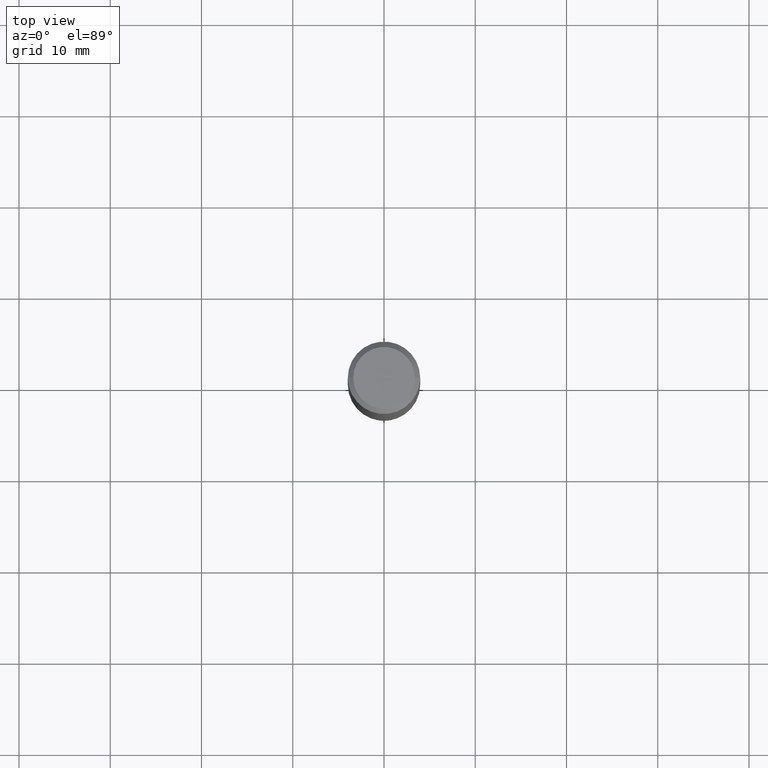
[diagram: clean part render]
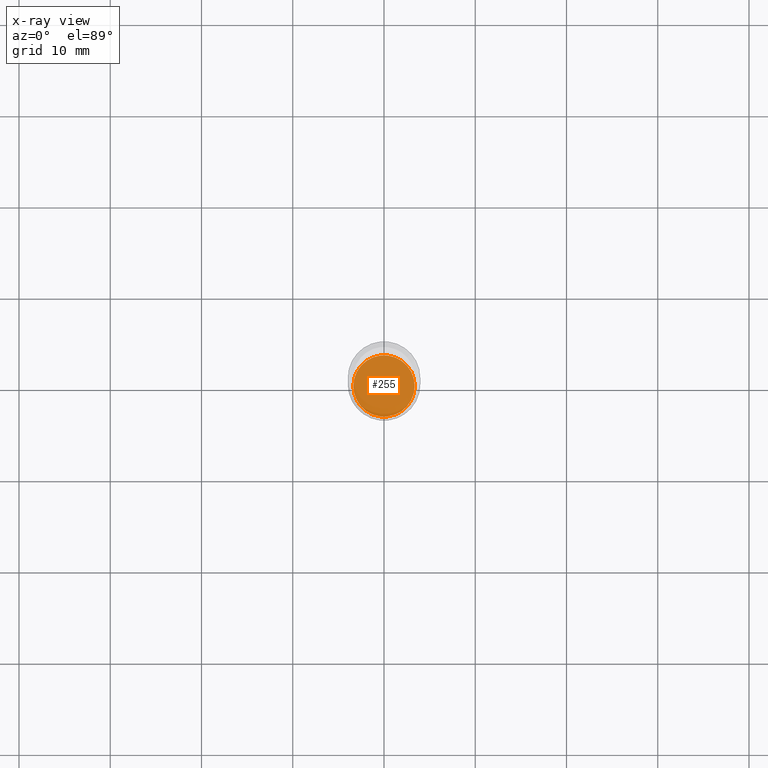
[diagram: x-ray — body ghosted, one internal face saturated and labeled with its STEP entity id]
A machine part, top view, then the same camera in x-ray: the body is ghosted and one INTERNAL B-rep face — a face not visible from any outside direction — is saturated and labeled: STEP entity #255.
In plain terms, the highlighted planar face has unit normal (-0, 0, 1).
Its self-contained STEP definition (entity closure, byte-faithful):
#31 = EDGE_LOOP ( 'NONE', ( #406, #304 ) ) ;
#49 = DIRECTION ( 'NONE',  ( -2.438088387897960049E-29, 3.491481338843145188E-15, 1.000000000000000000 ) ) ;
#65 = VERTEX_POINT ( 'NONE', #67 ) ;
#67 = CARTESIAN_POINT ( 'NONE',  ( 0.1323000000000000009, -8.179493332507835465E-15, -2.078100000000000058 ) ) ;
#85 = DIRECTION ( 'NONE',  ( -2.445468806185136597E-29, 3.491481338843145583E-15, 1.000000000000000000 ) ) ;
#111 = CIRCLE ( 'NONE', #277, 0.1323000000000000009 ) ;
#132 = DIRECTION ( 'NONE',  ( 1.000000000000000000, -6.982962677686267499E-15, 0.000000000000000000 ) ) ;
#165 = DIRECTION ( 'NONE',  ( 1.000000000000000000, -6.982962677686267499E-15, 0.000000000000000000 ) ) ;
#199 = FACE_OUTER_BOUND ( 'NONE', #31, .T. ) ;
#228 = AXIS2_PLACEMENT_3D ( 'NONE', #435, #85, #132 ) ;
#249 = DIRECTION ( 'NONE',  ( -2.445468806185136597E-29, 3.491481338843145583E-15, 1.000000000000000000 ) ) ;
#255 = ADVANCED_FACE ( 'NONE', ( #199 ), #352, .F. ) ;
#277 = AXIS2_PLACEMENT_3D ( 'NONE', #427, #249, #165 ) ;
#296 = CARTESIAN_POINT ( 'NONE',  ( -0.1323000000000000009, -6.312950103665218299E-15, -2.078100000000000058 ) ) ;
#304 = ORIENTED_EDGE ( 'NONE', *, *, #323, .F. ) ;
#317 = CARTESIAN_POINT ( 'NONE',  ( 5.081928726133333135E-29, -7.255647370249941067E-15, -2.078100000000000058 ) ) ;
#323 = EDGE_CURVE ( 'NONE', #403, #65, #111, .T. ) ;
#339 = EDGE_CURVE ( 'NONE', #65, #403, #483, .T. ) ;
#352 = PLANE ( 'NONE',  #424 ) ;
#398 = DIRECTION ( 'NONE',  ( 1.000000000000000000, -6.982962677686265922E-15, 4.876176775795935793E-29 ) ) ;
#403 = VERTEX_POINT ( 'NONE', #296 ) ;
#406 = ORIENTED_EDGE ( 'NONE', *, *, #339, .F. ) ;
#424 = AXIS2_PLACEMENT_3D ( 'NONE', #317, #49, #398 ) ;
#427 = CARTESIAN_POINT ( 'NONE',  ( 5.081928726133333135E-29, -7.255647370249941067E-15, -2.078100000000000058 ) ) ;
#435 = CARTESIAN_POINT ( 'NONE',  ( 5.081928726133333135E-29, -7.255647370249941067E-15, -2.078100000000000058 ) ) ;
#483 = CIRCLE ( 'NONE', #228, 0.1323000000000000009 ) ;